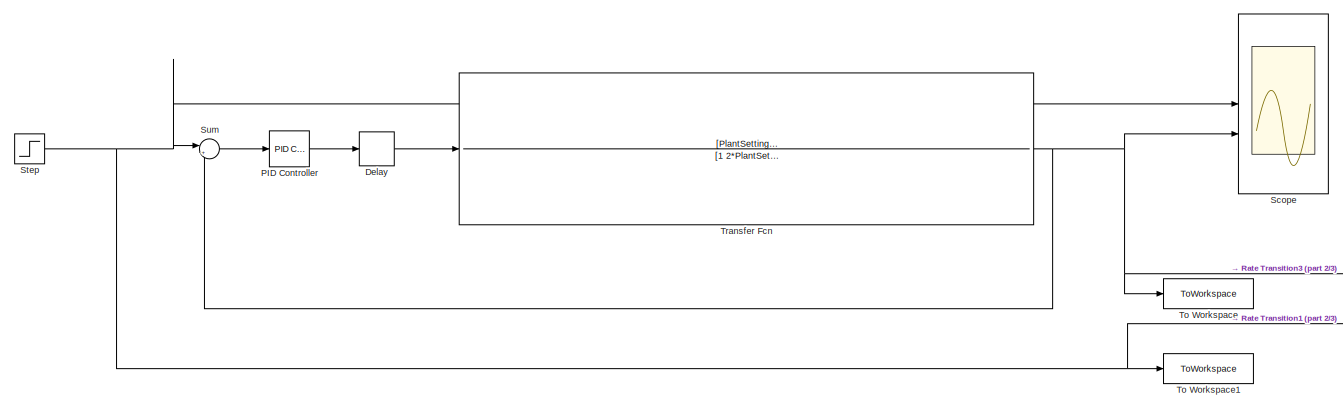
[diagram: root canvas - part 1/3, top left region]
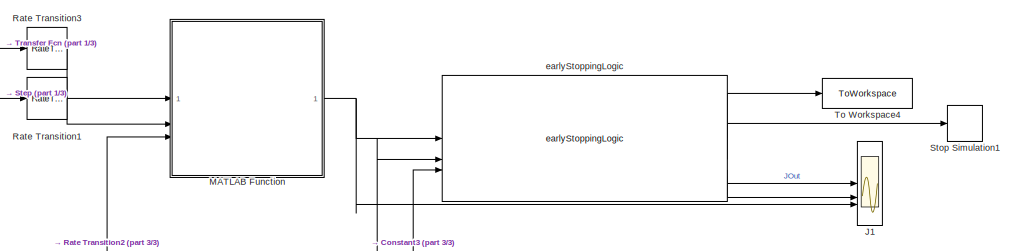
[diagram: root canvas - part 2/3, middle right region]
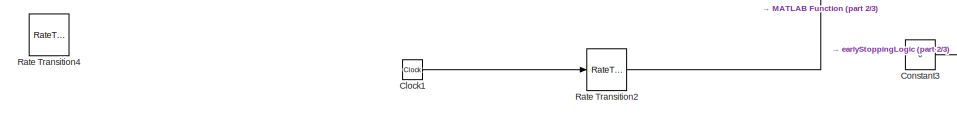
[diagram: root canvas - part 3/3, bottom center region]
MODEL slx_473abecc38e7
KIND model
CONFIG AbsTol = auto
CONFIG EnableMultiTasking = off
CONFIG FixedStep = 0.01
CONFIG MaxStep = auto
CONFIG MinStep = auto
CONFIG RelTol = 1e-3
CONFIG SampleTimeConstraint = Unconstrained
CONFIG SolverName = FixedStepAuto
CONFIG StartTime = 0.0
CONFIG StopTime = t_sim 
BLOCK [Clock] Clock1
BLOCK [Constant] Constant3
  Value = 0
BLOCK [Delay] Delay
  DelayLength = PlantSettings.DeadTime
  InputPortMap = u0
BLOCK [Scope] J1
  Floating = off
  NumInputPorts = 3
  ScopeSpecificationString = Simulink.scopes.TimeScopeBlockCfg('CurrentConfiguration', extmgr.ConfigurationSet(extmgr.Configuration('Core','General UI',true),extmgr.Configuration('Core','Source UI',true),extmgr.Configuration('Sources','WiredSimulink',true,'DataLoggingVariableName','ScopeData1'),extmgr.Configuration('Visuals','Time Domain',true,'SerializedDisplays',{struct('MinYLimReal','-0.00002','MaxYLimReal','0.00014','YLab...<+2226ch>
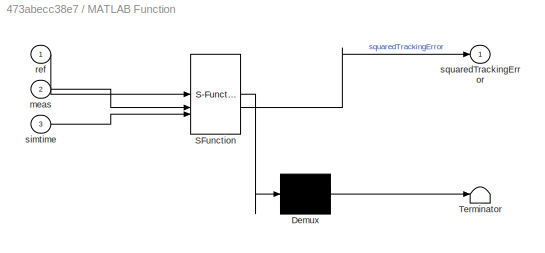
BLOCK [SubSystem] MATLAB Function
  ErrorFcn = Stateflow.Translate.translate
  PermitHierarchicalResolution = ExplicitOnly
  SFBlockType = MATLAB Function
  TreatAsAtomicUnit = on
BLOCK [Demux] MATLAB Function/ Demux 
  Outputs = 1
BLOCK [S-Function] MATLAB Function/ SFunction 
  EnableBusSupport = on
  FunctionName = sf_sfun
  PortCounts = [3 2]
  SFcnIsStateOwnerBlock = off
  SFunctionDeploymentMode = off
  Tag = Stateflow S-Function 2
BLOCK [Terminator] MATLAB Function/ Terminator 
BLOCK [Inport] MATLAB Function/meas
  Port = 2
BLOCK [Inport] MATLAB Function/ref
BLOCK [Inport] MATLAB Function/simtime
  Port = 3
BLOCK [Outport] MATLAB Function/squaredTrackingError
BLOCK [Reference] PID Controller  REF=slpidlib/PID Controller
  LibrarySourceBlock = simulink/Continuous/PID Controller
  SourceBlock = slpidlib/PID Controller
  SourceType = PID 1dof
BLOCK [RateTransition] Rate Transition1
  OutPortSampleTime = ESSettings.t_obj
BLOCK [RateTransition] Rate Transition2
  OutPortSampleTime = ESSettings.t_obj
BLOCK [RateTransition] Rate Transition3
  OutPortSampleTime = ESSettings.t_obj
BLOCK [RateTransition] Rate Transition4
  OutPortSampleTime = ESSettings.t_obj
BLOCK [Scope] Scope
  Floating = off
  NumInputPorts = 2
  ScopeSpecificationString = Simulink.scopes.TimeScopeBlockCfg('CurrentConfiguration', extmgr.ConfigurationSet(extmgr.Configuration('Core','General UI',true),extmgr.Configuration('Core','Source UI',true),extmgr.Configuration('Sources','WiredSimulink',true),extmgr.Configuration('Visuals','Time Domain',true,'SerializedDisplays',{struct('MinYLimReal','-0.16777','MaxYLimReal','1.50995','YLabelReal','','MinYLimMag','0.00000','MaxY...<+1446ch>
BLOCK [Step] Step
  SampleTime = 0
  Time = 0
BLOCK [Stop] Stop Simulation1
BLOCK [Sum] Sum
  Inputs = |+-
BLOCK [ToWorkspace] To Workspace
  FixptAsFi = on
  MaxDataPoints = inf
  SampleTime = -1
  SaveFormat = Structure With Time
  VariableName = y
BLOCK [ToWorkspace] To Workspace1
  FixptAsFi = on
  MaxDataPoints = inf
  SampleTime = -1
  SaveFormat = Structure With Time
  VariableName = w
BLOCK [ToWorkspace] To Workspace4
  FixptAsFi = on
  MaxDataPoints = inf
  SampleTime = -1
  SaveFormat = Structure With Time
  VariableName = j
BLOCK [TransferFcn] Transfer Fcn
  Denominator = [1 2*PlantSettings.D*PlantSettings.w0 PlantSettings.w0^2]
  Numerator = [PlantSettings.K*PlantSettings.w0^2]
BLOCK [Reference] earlyStoppingLogic  REF=UtilLib/earlyStoppingLogic
  SourceBlock = UtilLib/earlyStoppingLogic
  SourceType = SubSystem
LINE Clock1:1 -> Rate Transition2:1
LINE Constant3:1 -> earlyStoppingLogic:3
LINE Delay:1 -> Transfer Fcn:1
NET MATLAB Function:1 -> J1:3, earlyStoppingLogic:1
LINE PID Controller:1 -> Delay:1
LINE Rate Transition1:1 -> MATLAB Function:2
NET Rate Transition2:1 -> MATLAB Function:3, earlyStoppingLogic:2
LINE Rate Transition3:1 -> MATLAB Function:1
NET Step:1 -> Rate Transition1:1, Scope:1, Sum:1, To Workspace1:1
LINE Sum:1 -> PID Controller:1
NET Transfer Fcn:1 -> Rate Transition3:1, Scope:2, Sum:2, To Workspace:1
LINE earlyStoppingLogic:1 -> To Workspace4:1
LINE earlyStoppingLogic:2 -> Stop Simulation1:1
LINE earlyStoppingLogic:3 -> J1:1
LINE earlyStoppingLogic:4 -> J1:2
note: NET lines group one-source signal fan-out (src -> all destinations, sorted); 1:1 wires keep LINE
CHART MATLAB Function states=1 transitions=1
  STATE_LABEL 'eML_blk_kernel()'
  STATE_LABEL 'SCRIPT:\nfunction squaredTrackingError  = fcn(ref, meas,simtime)\n\nsquaredTrackingError = abs(ref-meas)*simtime;\n\nend'
CHART  states=0 transitions=0
